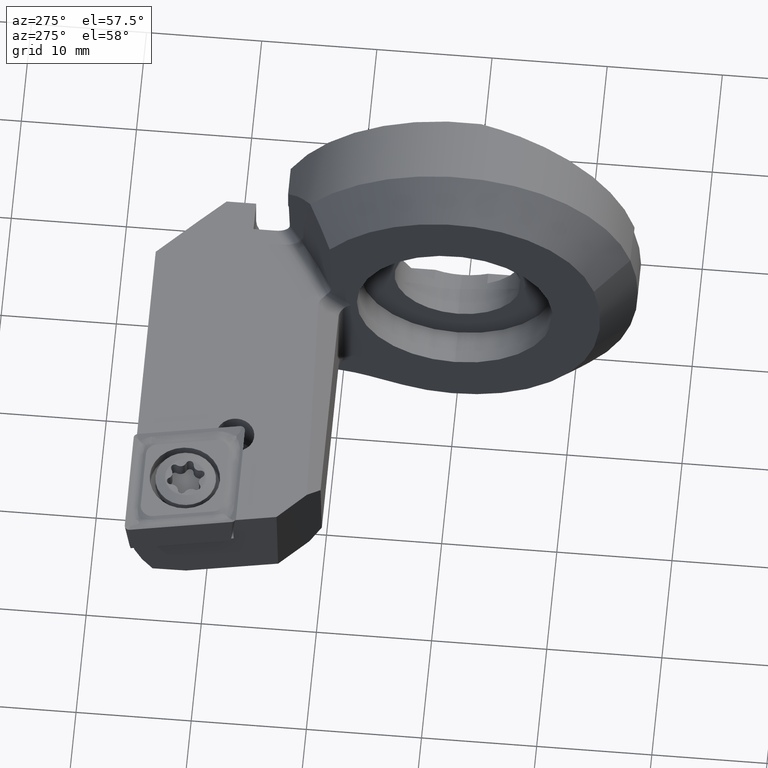
[diagram: clean part render]
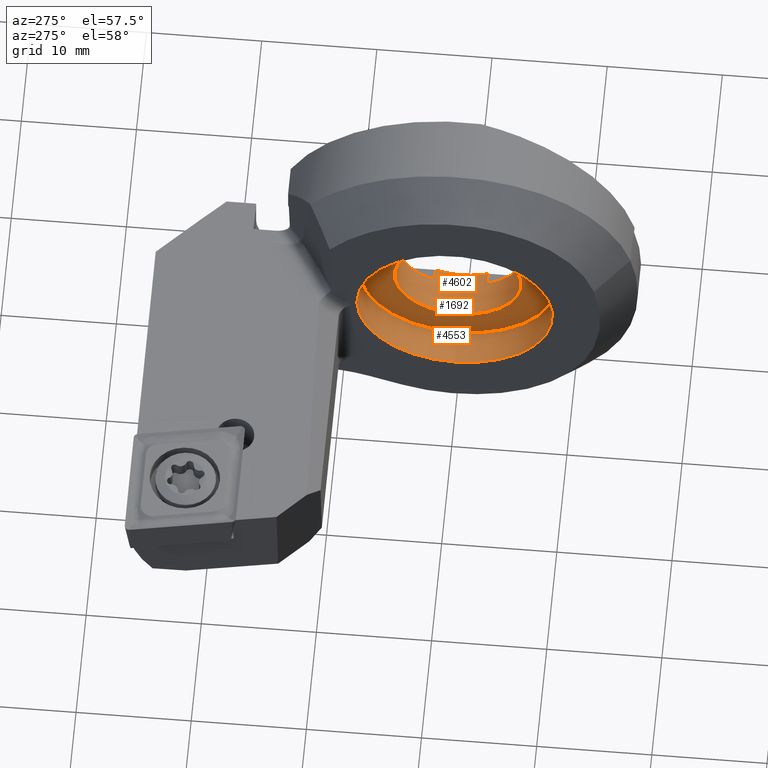
[diagram: same view with one multi-face feature highlighted, each face labeled with its STEP entity id]
A machine part, auxiliary view. The highlighted faces form ONE feature: a stepped (counterbored) hole: 2 coaxial cylindrical walls of radii 5.5 -> 8.5 mm joined by 1 annular planar shoulder face(s). The faces share edges in the B-rep.
Their STEP definitions:
[1] entity #4553 (Cylinder):
#521 = CARTESIAN_POINT ( 'NONE',  ( -4.000000000000000000, 0.0000000000000000000, 0.0000000000000000000 ) ) ;
#926 = DIRECTION ( 'NONE',  ( 1.000000000000000000, 1.182766006347820900E-016, 0.0000000000000000000 ) ) ;
#1076 = EDGE_CURVE ( 'NONE', #2199, #2199, #4575, .T. ) ;
#1130 = EDGE_CURVE ( 'NONE', #4549, #4549, #4297, .T. ) ;
#1342 = DIRECTION ( 'NONE',  ( 1.000000000000000000, -0.0000000000000000000, -0.0000000000000000000 ) ) ;
#1731 = ORIENTED_EDGE ( 'NONE', *, *, #1076, .F. ) ;
#1814 = CYLINDRICAL_SURFACE ( 'NONE', #2796, 8.500000000000000000 ) ;
#1979 = DIRECTION ( 'NONE',  ( -1.020425574104004100E-016, 1.000000000000000000, 0.0000000000000000000 ) ) ;
#2199 = VERTEX_POINT ( 'NONE', #3197 ) ;
#2440 = CARTESIAN_POINT ( 'NONE',  ( -4.000000000000000000, 0.0000000000000000000, -8.499999999999998200 ) ) ;
#2491 = FACE_OUTER_BOUND ( 'NONE', #3502, .T. ) ;
#2524 = AXIS2_PLACEMENT_3D ( 'NONE', #521, #3435, #2716 ) ;
#2716 = DIRECTION ( 'NONE',  ( 0.0000000000000000000, 0.0000000000000000000, -1.000000000000000000 ) ) ;
#2796 = AXIS2_PLACEMENT_3D ( 'NONE', #4506, #1342, #3479 ) ;
#2828 = FACE_OUTER_BOUND ( 'NONE', #2945, .T. ) ;
#2869 = ORIENTED_EDGE ( 'NONE', *, *, #1130, .T. ) ;
#2925 = AXIS2_PLACEMENT_3D ( 'NONE', #3398, #926, #1979 ) ;
#2945 = EDGE_LOOP ( 'NONE', ( #1731 ) ) ;
#3197 = CARTESIAN_POINT ( 'NONE',  ( -7.049999999999994500, 8.500000000000000000, 0.0000000000000000000 ) ) ;
#3398 = CARTESIAN_POINT ( 'NONE',  ( -7.049999999999993600, 0.0000000000000000000, 0.0000000000000000000 ) ) ;
#3435 = DIRECTION ( 'NONE',  ( 1.000000000000000000, -0.0000000000000000000, -0.0000000000000000000 ) ) ;
#3479 = DIRECTION ( 'NONE',  ( 0.0000000000000000000, 0.0000000000000000000, -1.000000000000000000 ) ) ;
#3502 = EDGE_LOOP ( 'NONE', ( #2869 ) ) ;
#4297 = CIRCLE ( 'NONE', #2524, 8.499999999999998200 ) ;
#4506 = CARTESIAN_POINT ( 'NONE',  ( 9.269405624678483900, 0.0000000000000000000, 0.0000000000000000000 ) ) ;
#4549 = VERTEX_POINT ( 'NONE', #2440 ) ;
#4553 = ADVANCED_FACE ( 'NONE', ( #2828, #2491 ), #1814, .F. ) ;
#4575 = CIRCLE ( 'NONE', #2925, 8.500000000000000000 ) ;
[2] entity #4602 (Cylinder):
#50 = ORIENTED_EDGE ( 'NONE', *, *, #3124, .F. ) ;
#107 = VERTEX_POINT ( 'NONE', #3557 ) ;
#246 = CARTESIAN_POINT ( 'NONE',  ( 0.0000000000000000000, 2.291287847477911900, 5.000000000000003600 ) ) ;
#295 = EDGE_CURVE ( 'NONE', #2817, #4574, #4353, .T. ) ;
#315 = DIRECTION ( 'NONE',  ( 1.000000000000000000, -0.0000000000000000000, -0.0000000000000000000 ) ) ;
#339 = CIRCLE ( 'NONE', #4037, 5.500000000000000000 ) ;
#544 = CIRCLE ( 'NONE', #2211, 5.500000000000000000 ) ;
#637 = DIRECTION ( 'NONE',  ( 0.0000000000000000000, 0.0000000000000000000, -1.000000000000000000 ) ) ;
#650 = LINE ( 'NONE', #3327, #3196 ) ;
#711 = CARTESIAN_POINT ( 'NONE',  ( -1.000000000000000900, -2.291287847477911000, -5.000000000000003600 ) ) ;
#750 = DIRECTION ( 'NONE',  ( 0.0000000000000000000, 0.0000000000000000000, -1.000000000000000000 ) ) ;
#783 = DIRECTION ( 'NONE',  ( 1.000000000000000000, -0.0000000000000000000, -0.0000000000000000000 ) ) ;
#826 = LINE ( 'NONE', #4117, #3641 ) ;
#1007 = CARTESIAN_POINT ( 'NONE',  ( -1.000000000000000900, 0.0000000000000000000, 0.0000000000000000000 ) ) ;
#1018 = ORIENTED_EDGE ( 'NONE', *, *, #295, .F. ) ;
#1162 = DIRECTION ( 'NONE',  ( -1.000000000000000000, 0.0000000000000000000, 0.0000000000000000000 ) ) ;
#1194 = CARTESIAN_POINT ( 'NONE',  ( 0.0000000000000000000, 2.291287847477911900, -5.000000000000003600 ) ) ;
#1209 = VERTEX_POINT ( 'NONE', #3161 ) ;
#1261 = DIRECTION ( 'NONE',  ( -1.000000000000000000, 0.0000000000000000000, 0.0000000000000000000 ) ) ;
#1359 = CARTESIAN_POINT ( 'NONE',  ( 0.0000000000000000000, -2.291287847477911000, 5.000000000000003600 ) ) ;
#1512 = EDGE_CURVE ( 'NONE', #4148, #3878, #2456, .T. ) ;
#1515 = VECTOR ( 'NONE', #4491, 1000.000000000000000 ) ;
#1527 = DIRECTION ( 'NONE',  ( 1.000000000000000000, -0.0000000000000000000, -0.0000000000000000000 ) ) ;
#1539 = EDGE_CURVE ( 'NONE', #1209, #3878, #1898, .T. ) ;
#1569 = CARTESIAN_POINT ( 'NONE',  ( 9.269405624678483900, 2.291287847477911900, -5.000000000000003600 ) ) ;
#1669 = EDGE_LOOP ( 'NONE', ( #4106 ) ) ;
#1748 = ORIENTED_EDGE ( 'NONE', *, *, #2466, .F. ) ;
#1756 = FACE_OUTER_BOUND ( 'NONE', #1669, .T. ) ;
#1852 = CARTESIAN_POINT ( 'NONE',  ( 0.0000000000000000000, 0.0000000000000000000, 0.0000000000000000000 ) ) ;
#1898 = CIRCLE ( 'NONE', #3414, 5.500000000000000000 ) ;
#1933 = ORIENTED_EDGE ( 'NONE', *, *, #3734, .T. ) ;
#2043 = CIRCLE ( 'NONE', #3894, 5.500000000000000000 ) ;
#2131 = EDGE_CURVE ( 'NONE', #2817, #4194, #544, .T. ) ;
#2211 = AXIS2_PLACEMENT_3D ( 'NONE', #2722, #4149, #4503 ) ;
#2248 = DIRECTION ( 'NONE',  ( 0.0000000000000000000, 0.0000000000000000000, -1.000000000000000000 ) ) ;
#2375 = FACE_OUTER_BOUND ( 'NONE', #3034, .T. ) ;
#2392 = DIRECTION ( 'NONE',  ( 0.0000000000000000000, 0.0000000000000000000, -1.000000000000000000 ) ) ;
#2456 = LINE ( 'NONE', #1569, #1515 ) ;
#2466 = EDGE_CURVE ( 'NONE', #4042, #2594, #650, .T. ) ;
#2494 = ORIENTED_EDGE ( 'NONE', *, *, #2131, .T. ) ;
#2520 = ORIENTED_EDGE ( 'NONE', *, *, #3256, .T. ) ;
#2594 = VERTEX_POINT ( 'NONE', #4434 ) ;
#2606 = CYLINDRICAL_SURFACE ( 'NONE', #4224, 5.500000000000000000 ) ;
#2622 = AXIS2_PLACEMENT_3D ( 'NONE', #1852, #783, #750 ) ;
#2653 = EDGE_CURVE ( 'NONE', #107, #107, #339, .T. ) ;
#2695 = ORIENTED_EDGE ( 'NONE', *, *, #1512, .F. ) ;
#2708 = ORIENTED_EDGE ( 'NONE', *, *, #1539, .T. ) ;
#2722 = CARTESIAN_POINT ( 'NONE',  ( -1.000000000000000900, 0.0000000000000000000, 0.0000000000000000000 ) ) ;
#2805 = CARTESIAN_POINT ( 'NONE',  ( 9.269405624678483900, 0.0000000000000000000, 0.0000000000000000000 ) ) ;
#2817 = VERTEX_POINT ( 'NONE', #3518 ) ;
#2996 = CARTESIAN_POINT ( 'NONE',  ( 9.269405624678483900, -2.291287847477911000, 5.000000000000003600 ) ) ;
#3034 = EDGE_LOOP ( 'NONE', ( #2695, #2520, #1748, #1933, #1018, #2494, #50, #2708 ) ) ;
#3085 = CARTESIAN_POINT ( 'NONE',  ( 0.0000000000000000000, 0.0000000000000000000, 0.0000000000000000000 ) ) ;
#3124 = EDGE_CURVE ( 'NONE', #1209, #4194, #826, .T. ) ;
#3161 = CARTESIAN_POINT ( 'NONE',  ( 0.0000000000000000000, -2.291287847477911000, -5.000000000000003600 ) ) ;
#3176 = CARTESIAN_POINT ( 'NONE',  ( -1.000000000000000900, 2.291287847477911900, -5.000000000000003600 ) ) ;
#3196 = VECTOR ( 'NONE', #1162, 1000.000000000000000 ) ;
#3256 = EDGE_CURVE ( 'NONE', #4148, #2594, #2043, .T. ) ;
#3327 = CARTESIAN_POINT ( 'NONE',  ( 9.269405624678483900, 2.291287847477911900, 5.000000000000003600 ) ) ;
#3401 = DIRECTION ( 'NONE',  ( 1.000000000000000000, -0.0000000000000000000, -0.0000000000000000000 ) ) ;
#3414 = AXIS2_PLACEMENT_3D ( 'NONE', #3085, #1527, #2248 ) ;
#3518 = CARTESIAN_POINT ( 'NONE',  ( -1.000000000000000900, -2.291287847477911000, 5.000000000000003600 ) ) ;
#3557 = CARTESIAN_POINT ( 'NONE',  ( -4.000000000000000000, 0.0000000000000000000, -5.500000000000000000 ) ) ;
#3641 = VECTOR ( 'NONE', #1261, 1000.000000000000000 ) ;
#3734 = EDGE_CURVE ( 'NONE', #4042, #4574, #4222, .T. ) ;
#3878 = VERTEX_POINT ( 'NONE', #1194 ) ;
#3894 = AXIS2_PLACEMENT_3D ( 'NONE', #1007, #4171, #2392 ) ;
#4019 = VECTOR ( 'NONE', #3401, 1000.000000000000000 ) ;
#4037 = AXIS2_PLACEMENT_3D ( 'NONE', #4191, #4174, #4124 ) ;
#4042 = VERTEX_POINT ( 'NONE', #246 ) ;
#4106 = ORIENTED_EDGE ( 'NONE', *, *, #2653, .F. ) ;
#4117 = CARTESIAN_POINT ( 'NONE',  ( 9.269405624678483900, -2.291287847477911000, -5.000000000000003600 ) ) ;
#4124 = DIRECTION ( 'NONE',  ( 0.0000000000000000000, 0.0000000000000000000, -1.000000000000000000 ) ) ;
#4148 = VERTEX_POINT ( 'NONE', #3176 ) ;
#4149 = DIRECTION ( 'NONE',  ( 1.000000000000000000, 0.0000000000000000000, 0.0000000000000000000 ) ) ;
#4171 = DIRECTION ( 'NONE',  ( 1.000000000000000000, 0.0000000000000000000, 0.0000000000000000000 ) ) ;
#4174 = DIRECTION ( 'NONE',  ( 1.000000000000000000, -0.0000000000000000000, -0.0000000000000000000 ) ) ;
#4191 = CARTESIAN_POINT ( 'NONE',  ( -4.000000000000000000, 0.0000000000000000000, 0.0000000000000000000 ) ) ;
#4194 = VERTEX_POINT ( 'NONE', #711 ) ;
#4222 = CIRCLE ( 'NONE', #2622, 5.500000000000000000 ) ;
#4224 = AXIS2_PLACEMENT_3D ( 'NONE', #2805, #315, #637 ) ;
#4353 = LINE ( 'NONE', #2996, #4019 ) ;
#4434 = CARTESIAN_POINT ( 'NONE',  ( -1.000000000000000900, 2.291287847477911900, 5.000000000000003600 ) ) ;
#4491 = DIRECTION ( 'NONE',  ( 1.000000000000000000, -0.0000000000000000000, -0.0000000000000000000 ) ) ;
#4503 = DIRECTION ( 'NONE',  ( 0.0000000000000000000, 0.0000000000000000000, -1.000000000000000000 ) ) ;
#4574 = VERTEX_POINT ( 'NONE', #1359 ) ;
#4602 = ADVANCED_FACE ( 'NONE', ( #2375, #1756 ), #2606, .F. ) ;
[3] entity #1692 (Plane):
#10 = FACE_BOUND ( 'NONE', #1124, .T. ) ;
#107 = VERTEX_POINT ( 'NONE', #3557 ) ;
#339 = CIRCLE ( 'NONE', #4037, 5.500000000000000000 ) ;
#521 = CARTESIAN_POINT ( 'NONE',  ( -4.000000000000000000, 0.0000000000000000000, 0.0000000000000000000 ) ) ;
#523 = ORIENTED_EDGE ( 'NONE', *, *, #2653, .T. ) ;
#1124 = EDGE_LOOP ( 'NONE', ( #523 ) ) ;
#1130 = EDGE_CURVE ( 'NONE', #4549, #4549, #4297, .T. ) ;
#1305 = EDGE_LOOP ( 'NONE', ( #3958 ) ) ;
#1685 = CARTESIAN_POINT ( 'NONE',  ( -4.000000000000000000, 8.499999999999998200, 0.0000000000000000000 ) ) ;
#1692 = ADVANCED_FACE ( 'NONE', ( #10, #4064 ), #3834, .T. ) ;
#1715 = DIRECTION ( 'NONE',  ( 0.0000000000000000000, 0.0000000000000000000, 1.000000000000000000 ) ) ;
#2440 = CARTESIAN_POINT ( 'NONE',  ( -4.000000000000000000, 0.0000000000000000000, -8.499999999999998200 ) ) ;
#2524 = AXIS2_PLACEMENT_3D ( 'NONE', #521, #3435, #2716 ) ;
#2653 = EDGE_CURVE ( 'NONE', #107, #107, #339, .T. ) ;
#2716 = DIRECTION ( 'NONE',  ( 0.0000000000000000000, 0.0000000000000000000, -1.000000000000000000 ) ) ;
#3435 = DIRECTION ( 'NONE',  ( 1.000000000000000000, -0.0000000000000000000, -0.0000000000000000000 ) ) ;
#3515 = DIRECTION ( 'NONE',  ( -1.000000000000000000, 0.0000000000000000000, 0.0000000000000000000 ) ) ;
#3557 = CARTESIAN_POINT ( 'NONE',  ( -4.000000000000000000, 0.0000000000000000000, -5.500000000000000000 ) ) ;
#3834 = PLANE ( 'NONE',  #4540 ) ;
#3958 = ORIENTED_EDGE ( 'NONE', *, *, #1130, .F. ) ;
#4037 = AXIS2_PLACEMENT_3D ( 'NONE', #4191, #4174, #4124 ) ;
#4064 = FACE_OUTER_BOUND ( 'NONE', #1305, .T. ) ;
#4124 = DIRECTION ( 'NONE',  ( 0.0000000000000000000, 0.0000000000000000000, -1.000000000000000000 ) ) ;
#4174 = DIRECTION ( 'NONE',  ( 1.000000000000000000, -0.0000000000000000000, -0.0000000000000000000 ) ) ;
#4191 = CARTESIAN_POINT ( 'NONE',  ( -4.000000000000000000, 0.0000000000000000000, 0.0000000000000000000 ) ) ;
#4297 = CIRCLE ( 'NONE', #2524, 8.499999999999998200 ) ;
#4540 = AXIS2_PLACEMENT_3D ( 'NONE', #1685, #3515, #1715 ) ;
#4549 = VERTEX_POINT ( 'NONE', #2440 ) ;